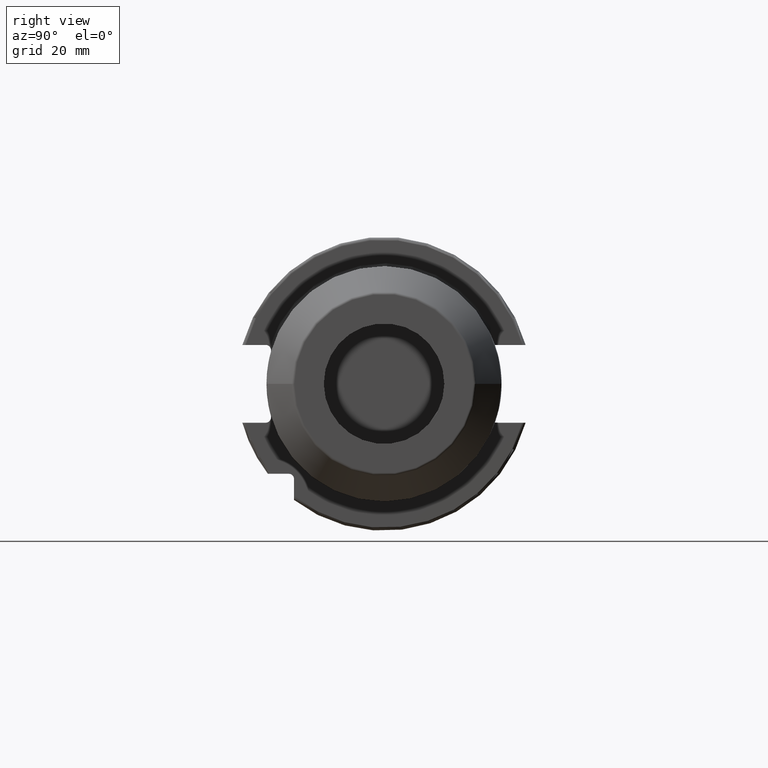
[diagram: clean part render]
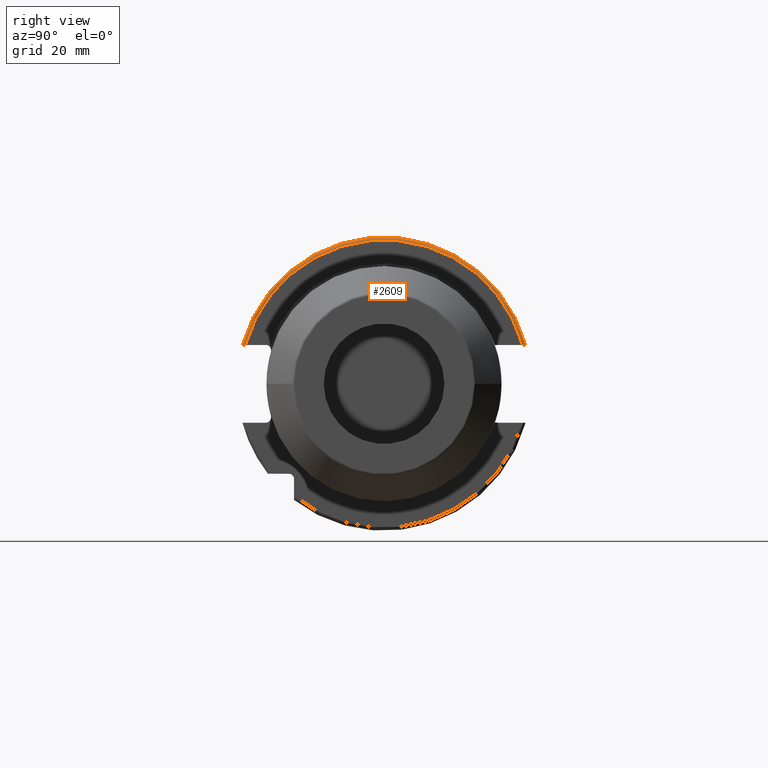
[diagram: same view with one face highlighted and labeled with its STEP entity id]
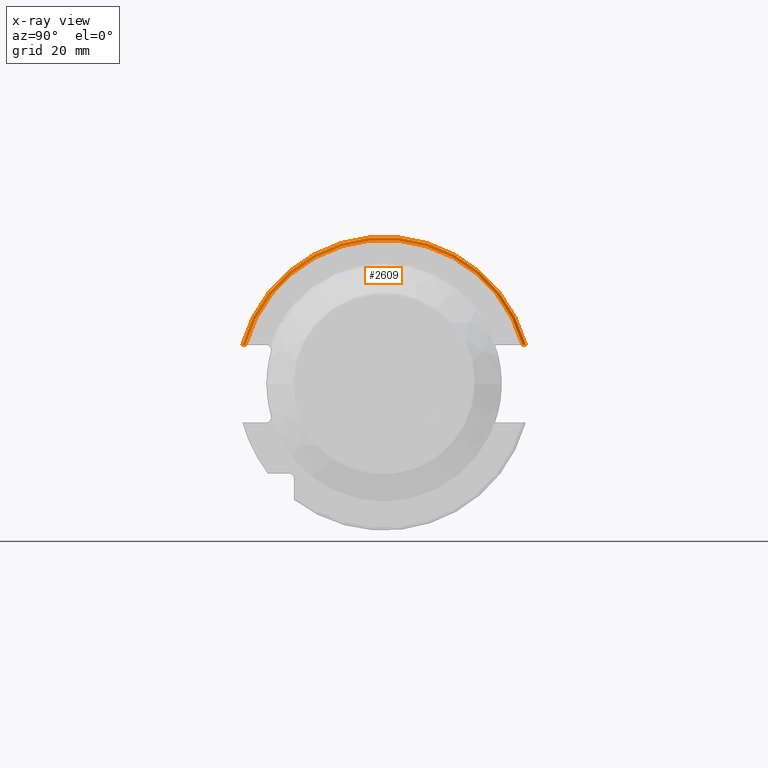
[diagram: x-ray of the same camera — body ghosted, the highlighted face saturated]
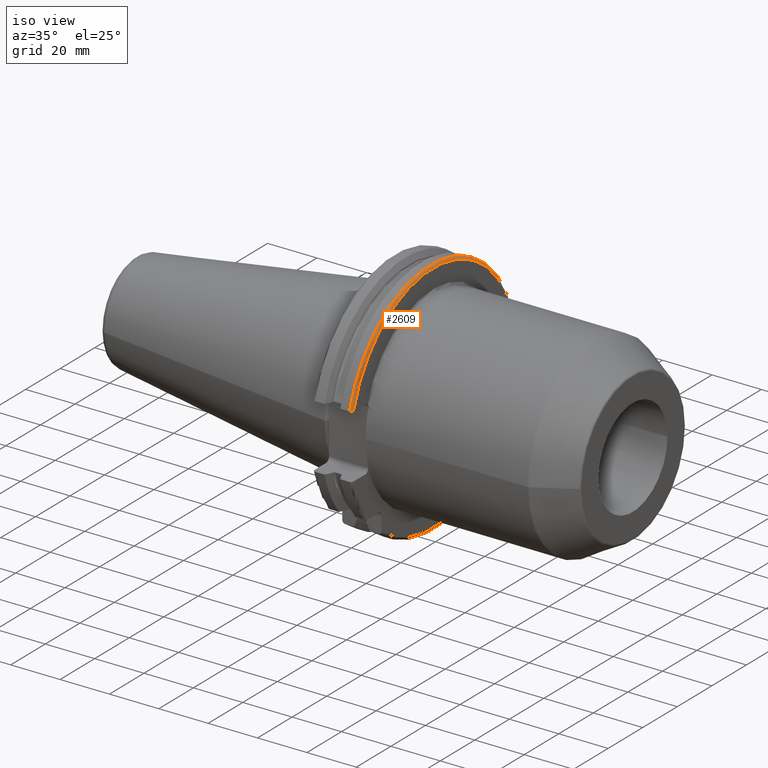
[diagram: same view with one face highlighted and labeled with its STEP entity id]
A machine part, right view. The second image highlights one B-rep face of the part: STEP entity #2609.
The next image is the same camera in x-ray: the body ghosted, the highlighted face saturated — about 0% of this face is hidden behind the body in this view.
A second angle (iso view) of the same face is appended — the face is thin or edge-on in the first view.
In plain terms, the highlighted toroidal blend (fillet) surface has major radius 47.7375 mm and minor (blend) radius 1 mm.
Its self-contained STEP definition (entity closure, byte-faithful):
#711=CARTESIAN_POINT('',(1.905E1,4.596149373389E1,1.29E1));
#712=CARTESIAN_POINT('',(1.905E1,4.604025341545E1,1.29E1));
#713=CARTESIAN_POINT('',(1.903319704314E1,4.619325673207E1,1.29E1));
#714=CARTESIAN_POINT('',(1.895943574721E1,4.641382557540E1,1.29E1));
#715=CARTESIAN_POINT('',(1.884029019608E1,4.661163569902E1,1.29E1));
#716=CARTESIAN_POINT('',(1.868162992187E1,4.677744958982E1,1.29E1));
#717=CARTESIAN_POINT('',(1.849033887272E1,4.690323680095E1,1.29E1));
#718=CARTESIAN_POINT('',(1.827565953653E1,4.698148434228E1,1.29E1));
#719=CARTESIAN_POINT('',(1.812673203795E1,4.699929686974E1,1.29E1));
#720=CARTESIAN_POINT('',(1.805E1,4.699929686974E1,1.29E1));
#722=CARTESIAN_POINT('',(1.905E1,0.E0,0.E0));
#723=DIRECTION('',(1.E0,0.E0,0.E0));
#724=DIRECTION('',(0.E0,9.627964123359E-1,2.702278083268E-1));
#725=AXIS2_PLACEMENT_3D('',#722,#723,#724);
#727=CARTESIAN_POINT('',(1.805E1,-4.699929686974E1,1.29E1));
#728=CARTESIAN_POINT('',(1.812676342368E1,-4.699929686974E1,1.29E1));
#729=CARTESIAN_POINT('',(1.827575329770E1,-4.698147245914E1,1.29E1));
#730=CARTESIAN_POINT('',(1.849056832427E1,-4.690313408822E1,1.29E1));
#731=CARTESIAN_POINT('',(1.868190698842E1,-4.677722381974E1,1.29E1));
#732=CARTESIAN_POINT('',(1.884050497536E1,-4.661134760606E1,1.29E1));
#733=CARTESIAN_POINT('',(1.895953365851E1,-4.641358752589E1,1.29E1));
#734=CARTESIAN_POINT('',(1.903320906929E1,-4.619315655817E1,1.29E1));
#735=CARTESIAN_POINT('',(1.905E1,-4.604021961607E1,1.29E1));
#736=CARTESIAN_POINT('',(1.905E1,-4.596149373389E1,1.29E1));
#755=CARTESIAN_POINT('',(1.805E1,0.E0,0.E0));
#756=DIRECTION('',(1.E0,0.E0,0.E0));
#757=DIRECTION('',(0.E0,9.643354064066E-1,2.646832521159E-1));
#758=AXIS2_PLACEMENT_3D('',#755,#756,#757);
#1711=CARTESIAN_POINT('',(1.805E1,4.699929686974E1,1.29E1));
#1712=VERTEX_POINT('',#1711);
#1715=CARTESIAN_POINT('',(1.805E1,-4.699929686974E1,1.29E1));
#1716=VERTEX_POINT('',#1715);
#1728=VERTEX_POINT('',#711);
#1729=VERTEX_POINT('',#736);
#2597=CARTESIAN_POINT('',(1.805E1,0.E0,0.E0));
#2598=DIRECTION('',(1.E0,0.E0,0.E0));
#2599=DIRECTION('',(0.E0,-1.E0,0.E0));
#2600=AXIS2_PLACEMENT_3D('',#2597,#2598,#2599);
#2601=TOROIDAL_SURFACE('',#2600,4.77375E1,1.E0);
#2602=ORIENTED_EDGE('',*,*,#2570,.F.);
#2603=ORIENTED_EDGE('',*,*,#2128,.T.);
#2604=ORIENTED_EDGE('',*,*,#2544,.F.);
#2606=ORIENTED_EDGE('',*,*,#2605,.F.);
#2607=EDGE_LOOP('',(#2602,#2603,#2604,#2606));
#2608=FACE_OUTER_BOUND('',#2607,.F.);
#2609=ADVANCED_FACE('',(#2608),#2601,.T.);
#721=B_SPLINE_CURVE_WITH_KNOTS('',3,(#711,#712,#713,#714,#715,#716,#717,#718,
#719,#720),.UNSPECIFIED.,.F.,.F.,(4,1,1,1,1,1,1,4),(0.E0,1.428571428571E-1,
2.857142857143E-1,4.285714285714E-1,5.714285714286E-1,7.142857142857E-1,
8.571428571429E-1,1.E0),.UNSPECIFIED.);
#726=CIRCLE('',#725,4.77375E1);
#737=B_SPLINE_CURVE_WITH_KNOTS('',3,(#727,#728,#729,#730,#731,#732,#733,#734,
#735,#736),.UNSPECIFIED.,.F.,.F.,(4,1,1,1,1,1,1,4),(0.E0,1.428571428571E-1,
2.857142857143E-1,4.285714285714E-1,5.714285714286E-1,7.142857142857E-1,
8.571428571429E-1,1.E0),.UNSPECIFIED.);
#759=CIRCLE('',#758,4.87375E1);
#2128=EDGE_CURVE('',#1728,#1729,#726,.T.);
#2544=EDGE_CURVE('',#1716,#1729,#737,.T.);
#2570=EDGE_CURVE('',#1728,#1712,#721,.T.);
#2605=EDGE_CURVE('',#1712,#1716,#759,.T.);